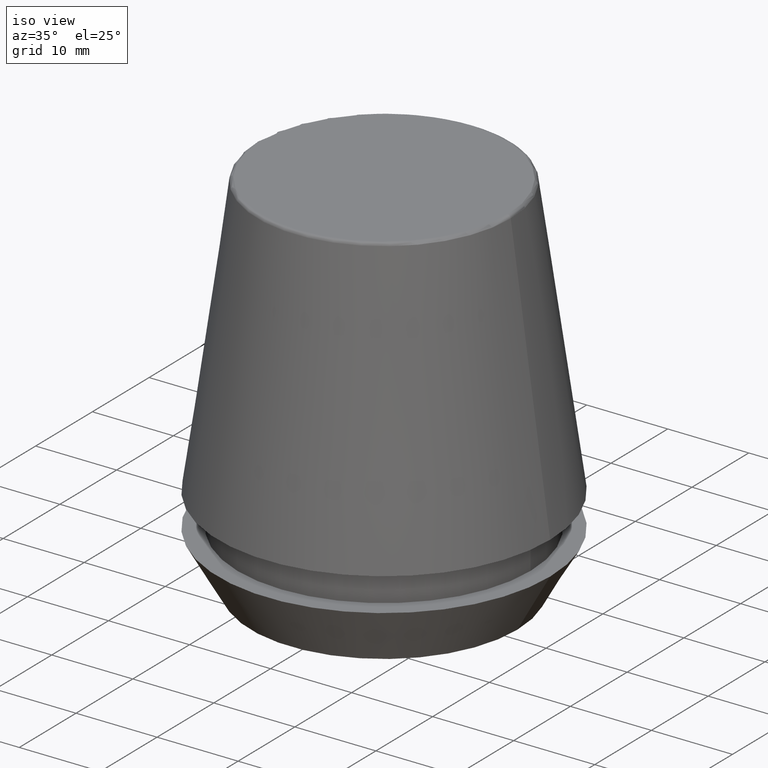
[diagram: clean part render]
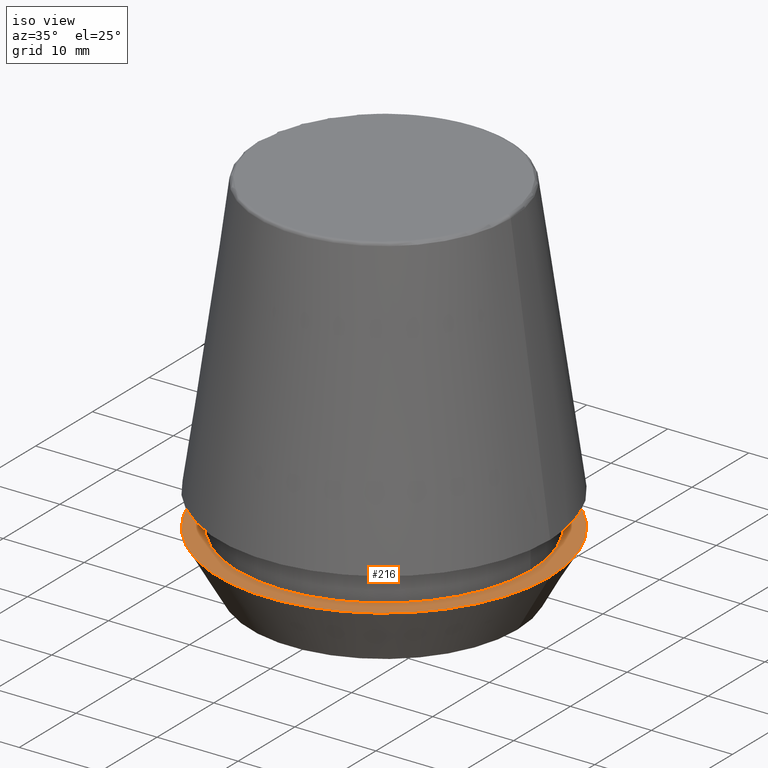
[diagram: same view with one face highlighted and labeled with its STEP entity id]
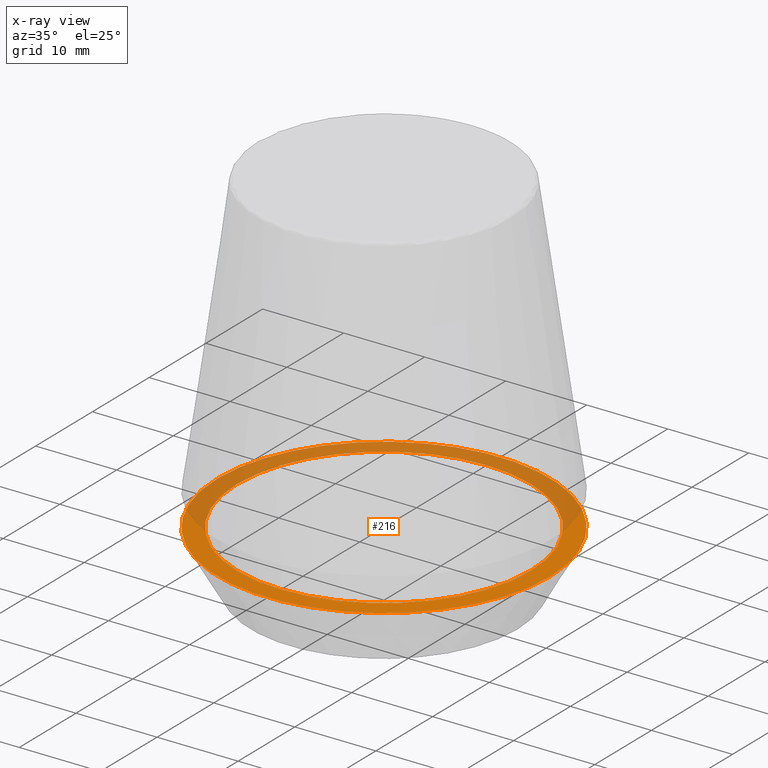
[diagram: x-ray of the same camera — body ghosted, the highlighted face saturated]
A machine part, iso view. The second image highlights one B-rep face of the part: STEP entity #216.
The next image is the same camera in x-ray: the body ghosted, the highlighted face saturated — about 47% of this face is hidden behind the body in this view.
In plain terms, the highlighted planar face has unit normal (0, 0, -1).
Its self-contained STEP definition (entity closure, byte-faithful):
#3 = CARTESIAN_POINT ( 'NONE',  ( 0.0000000000000000000, 0.0000000000000000000, 6.999999999999999100 ) ) ;
#11 = CARTESIAN_POINT ( 'NONE',  ( -20.50000000000000000, 2.510525938252074100E-015, 7.000000000000006200 ) ) ;
#12 = EDGE_CURVE ( 'NONE', #49, #363, #160, .T. ) ;
#34 = FACE_OUTER_BOUND ( 'NONE', #256, .T. ) ;
#35 = AXIS2_PLACEMENT_3D ( 'NONE', #3, #269, #236 ) ;
#39 = FACE_BOUND ( 'NONE', #247, .T. ) ;
#49 = VERTEX_POINT ( 'NONE', #232 ) ;
#50 = ORIENTED_EDGE ( 'NONE', *, *, #272, .F. ) ;
#54 = CIRCLE ( 'NONE', #360, 20.50000000000000000 ) ;
#69 = CARTESIAN_POINT ( 'NONE',  ( 20.50000000000000000, 0.0000000000000000000, 7.000000000000006200 ) ) ;
#85 = EDGE_CURVE ( 'NONE', #220, #136, #54, .T. ) ;
#104 = DIRECTION ( 'NONE',  ( -0.0000000000000000000, -0.0000000000000000000, 1.000000000000000000 ) ) ;
#109 = DIRECTION ( 'NONE',  ( -1.000000000000000000, 0.0000000000000000000, -0.0000000000000000000 ) ) ;
#112 = DIRECTION ( 'NONE',  ( -0.0000000000000000000, -0.0000000000000000000, 1.000000000000000000 ) ) ;
#119 = ORIENTED_EDGE ( 'NONE', *, *, #12, .F. ) ;
#127 = CIRCLE ( 'NONE', #348, 18.10000000000000100 ) ;
#133 = DIRECTION ( 'NONE',  ( -0.0000000000000000000, -0.0000000000000000000, 1.000000000000000000 ) ) ;
#136 = VERTEX_POINT ( 'NONE', #69 ) ;
#139 = DIRECTION ( 'NONE',  ( 0.0000000000000000000, 0.0000000000000000000, -1.000000000000000000 ) ) ;
#157 = AXIS2_PLACEMENT_3D ( 'NONE', #328, #139, #109 ) ;
#160 = CIRCLE ( 'NONE', #35, 18.10000000000000100 ) ;
#169 = EDGE_CURVE ( 'NONE', #136, #220, #191, .T. ) ;
#191 = CIRCLE ( 'NONE', #298, 20.50000000000000000 ) ;
#200 = ORIENTED_EDGE ( 'NONE', *, *, #169, .T. ) ;
#207 = CARTESIAN_POINT ( 'NONE',  ( -18.10000000000000100, 2.216610706456709600E-015, 6.999999999999999100 ) ) ;
#216 = ADVANCED_FACE ( 'NONE', ( #39, #34 ), #343, .F. ) ;
#220 = VERTEX_POINT ( 'NONE', #11 ) ;
#232 = CARTESIAN_POINT ( 'NONE',  ( 18.10000000000000100, 0.0000000000000000000, 6.999999999999999100 ) ) ;
#236 = DIRECTION ( 'NONE',  ( 1.000000000000000000, 0.0000000000000000000, 0.0000000000000000000 ) ) ;
#247 = EDGE_LOOP ( 'NONE', ( #119, #50 ) ) ;
#256 = EDGE_LOOP ( 'NONE', ( #200, #292 ) ) ;
#269 = DIRECTION ( 'NONE',  ( -0.0000000000000000000, -0.0000000000000000000, 1.000000000000000000 ) ) ;
#272 = EDGE_CURVE ( 'NONE', #363, #49, #127, .T. ) ;
#292 = ORIENTED_EDGE ( 'NONE', *, *, #85, .T. ) ;
#298 = AXIS2_PLACEMENT_3D ( 'NONE', #320, #133, #303 ) ;
#299 = DIRECTION ( 'NONE',  ( 1.000000000000000000, 0.0000000000000000000, 0.0000000000000000000 ) ) ;
#303 = DIRECTION ( 'NONE',  ( 1.000000000000000000, 0.0000000000000000000, 0.0000000000000000000 ) ) ;
#320 = CARTESIAN_POINT ( 'NONE',  ( 0.0000000000000000000, 0.0000000000000000000, 7.000000000000006200 ) ) ;
#328 = CARTESIAN_POINT ( 'NONE',  ( 0.0000000000000000000, 20.50000000000000000, 7.000000000000002700 ) ) ;
#343 = PLANE ( 'NONE',  #157 ) ;
#345 = DIRECTION ( 'NONE',  ( 1.000000000000000000, 0.0000000000000000000, 0.0000000000000000000 ) ) ;
#348 = AXIS2_PLACEMENT_3D ( 'NONE', #377, #112, #345 ) ;
#360 = AXIS2_PLACEMENT_3D ( 'NONE', #365, #104, #299 ) ;
#363 = VERTEX_POINT ( 'NONE', #207 ) ;
#365 = CARTESIAN_POINT ( 'NONE',  ( 0.0000000000000000000, 0.0000000000000000000, 7.000000000000006200 ) ) ;
#377 = CARTESIAN_POINT ( 'NONE',  ( 0.0000000000000000000, 0.0000000000000000000, 6.999999999999999100 ) ) ;